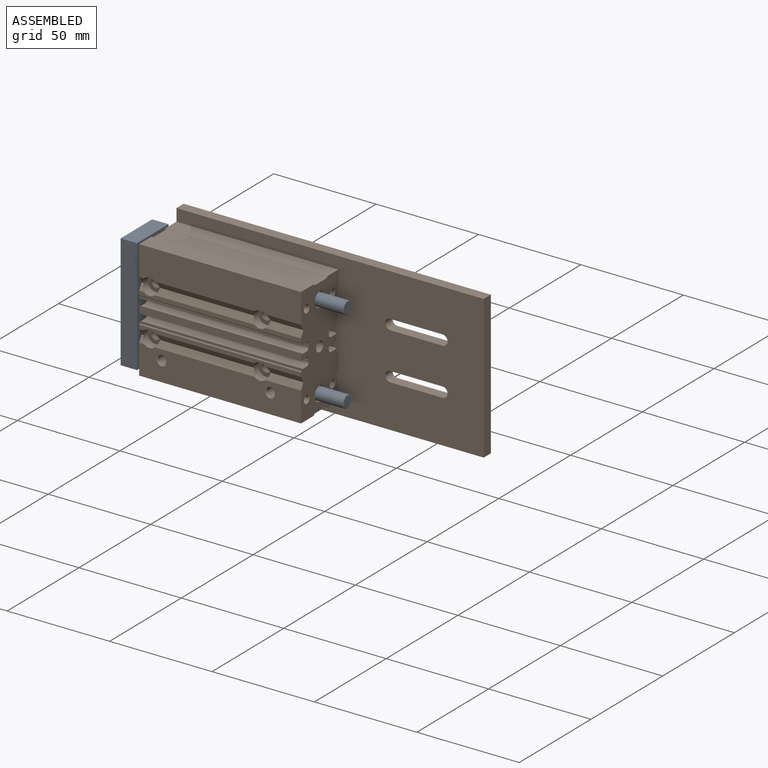
[diagram: assembled view]
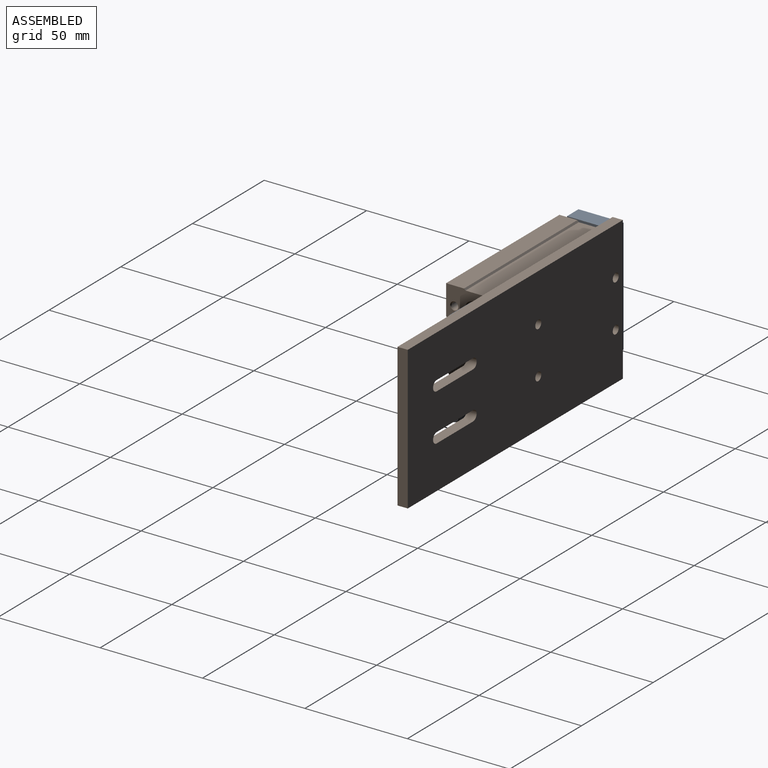
[diagram: assembled view, second angle]
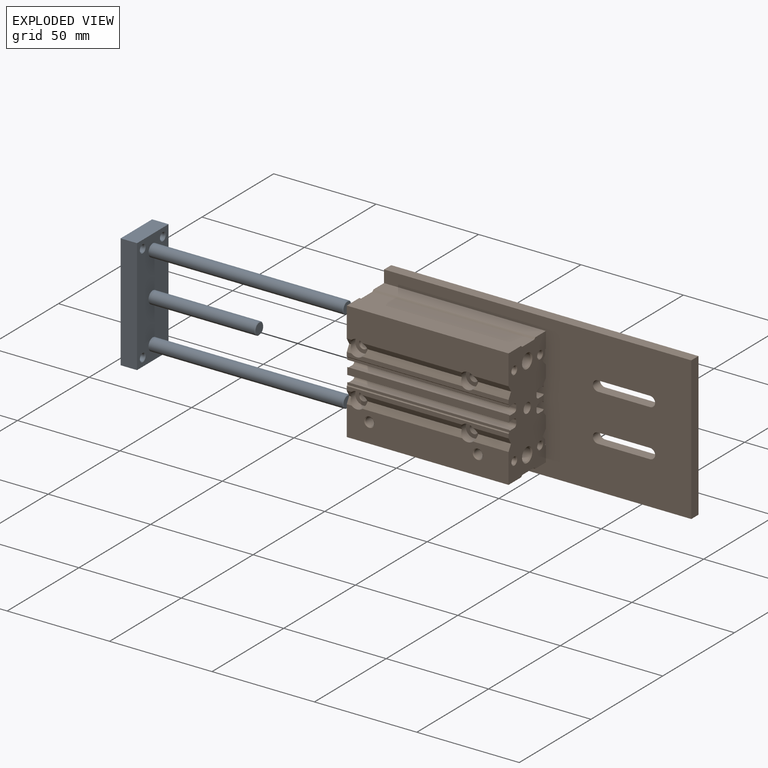
[diagram: exploded view]
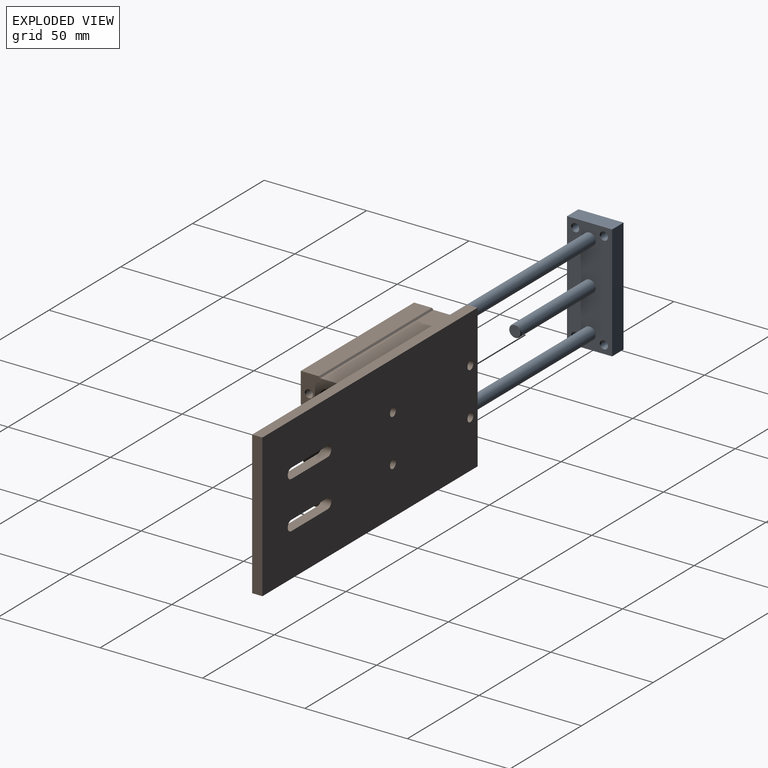
[diagram: exploded view, second angle]
ASSEMBLY  parts=2 mates=2
PART A: 48 faces, bbox 103x22x56 mm
  f0: cone r=1.5mm half-angle=60deg, axis (-1,0,0), area 8.2mm2, adj f3
  f1: cone r=1.25mm half-angle=60deg, axis (-1,0,0), area 5.7mm2, adj f4
  f2: cone r=1.5mm half-angle=60deg, axis (-1,0,0), area 8.2mm2, adj f5
  f3: cylinder r=1.5mm len=3mm, axis (1,0,0), area 24.5mm2, adj f0,f6
  f4: cylinder r=1.25mm len=2.5mm, axis (1,0,0), area 12.6mm2, adj f1,f7
  f5: cylinder r=1.5mm len=3mm, axis (1,0,0), area 24.5mm2, adj f2,f8
  f6: plane 6x6mm, normal (-1,0,0), area 21.2mm2, adj f3,f9
  f7: plane 4.5x4.5mm, normal (-1,0,0), area 11mm2, adj f4,f10
  f8: plane 6x6mm, normal (-1,0,0), area 21.2mm2, adj f5,f11
  f9: cone r=3.25mm half-angle=45deg, axis (1,0,0), area 14.4mm2, adj f6,f12
  f10: cone r=2.5mm half-angle=45deg, axis (1,0,0), area 11.1mm2, adj f7,f13
  f11: cone r=3.25mm half-angle=45deg, axis (1,0,0), area 14.4mm2, adj f8,f14
  f12: cylinder r=3.5mm len=7mm, axis (1,0,0), area 77mm2, adj f9,f15
  f13: cylinder r=2.75mm len=5.5mm, axis (1,0,0), area 43.2mm2, adj f10,f16
  f14: cylinder r=3.5mm len=7mm, axis (1,0,0), area 77mm2, adj f11,f17
  f15: plane 7.6x7.6mm, normal (-1,0,0), area 6.9mm2, adj f12,f20
  f16: plane 6.1x6.1mm, normal (-1,0,0), area 5.5mm2, adj f13,f21
  f17: plane 7.6x7.6mm, normal (-1,0,0), area 6.9mm2, adj f14,f22
  f18: plane 5.4x5.4mm, normal (1,0,0), area 22.9mm2, adj f27
  f19: plane 5.4x5.4mm, normal (1,0,0), area 22.9mm2, adj f28
  f20: cylinder r=3.8mm len=7.6mm, axis (1,0,0), area 127.3mm2, adj f15,f33
  f21: cylinder r=3.05mm len=6.1mm, axis (1,0,0), area 102.2mm2, adj f16,f33
  f22: cylinder r=3.8mm len=7.6mm, axis (1,0,0), area 127.3mm2, adj f17,f33
  f23: cone r=1.81mm half-angle=45deg, axis (-1,0,0), area 6.1mm2, adj f29,f33
  f24: cone r=1.81mm half-angle=45deg, axis (-1,0,0), area 6.1mm2, adj f30,f33
  f25: cone r=1.81mm half-angle=45deg, axis (-1,0,0), area 6.1mm2, adj f31,f33
  f26: cone r=1.81mm half-angle=45deg, axis (-1,0,0), area 6.1mm2, adj f32,f33
  f27: cone r=2.85mm half-angle=45deg, axis (-1,0,0), area 7.6mm2, adj f18,f34
  f28: cone r=2.85mm half-angle=45deg, axis (-1,0,0), area 7.6mm2, adj f19,f35
  f29: cylinder r=1.62mm len=7.24mm, axis (1,0,0), area 73.8mm2, adj f23,f36
  f30: cylinder r=1.62mm len=7.24mm, axis (1,0,0), area 73.8mm2, adj f24,f37
  f31: cylinder r=1.62mm len=7.24mm, axis (1,0,0), area 73.8mm2, adj f25,f38
  f32: cylinder r=1.62mm len=7.24mm, axis (1,0,0), area 73.8mm2, adj f26,f39
  f33: plane 56x22mm, normal (-1,0,0), area 1061.8mm2, adj f20,f21,f22,f23,f24,f25,f26,f40
  f34: cylinder r=3mm len=94.7mm, axis (1,0,0), area 1785.1mm2, adj f27,f45
  f35: cylinder r=3mm len=51.7mm, axis (1,0,0), area 974.5mm2, adj f28,f45
  f36: cone r=1.81mm half-angle=45deg, axis (1,0,0), area 6.1mm2, adj f29,f45
  f37: cone r=1.81mm half-angle=45deg, axis (1,0,0), area 6.1mm2, adj f30,f45
  f38: cone r=1.81mm half-angle=45deg, axis (1,0,0), area 6.1mm2, adj f31,f45
  f39: cone r=1.81mm half-angle=45deg, axis (1,0,0), area 6.1mm2, adj f32,f45
  f40: plane 56x8mm, normal (0,-1,0), area 448mm2, adj f33,f41,f43,f45
  f41: plane 22x8mm, normal (0,0,-1), area 176mm2, adj f33,f40,f42,f45
  f42: plane 56x8mm, normal (0,1,0), area 448mm2, adj f33,f41,f43,f45
  f43: plane 22x8mm, normal (0,0,1), area 176mm2, adj f33,f40,f42,f45
  f44: plane 5.4x5.4mm, normal (1,0,0), area 22.9mm2, adj f46
  f45: plane 56x22mm, normal (1,0,0), area 1096.9mm2, adj f34,f35,f36,f37,f38,f39,f40,f41
  f46: cone r=2.85mm half-angle=45deg, axis (-1,0,0), area 7.6mm2, adj f44,f47
  f47: cylinder r=3mm len=94.7mm, axis (1,0,0), area 1785.1mm2, adj f45,f46
PART B: 169 faces, bbox 150.2x31.2x70.2 mm
  f0: plane 4.13x4.13mm, normal (0,-1,0), area 13.4mm2, adj f12
  f1: plane 4.13x4.13mm, normal (0,-1,0), area 13.4mm2, adj f13
  f2: plane 4.13x4.13mm, normal (0,0,-1), area 13.4mm2, adj f14
  f3: plane 4.13x4.13mm, normal (0,0,-1), area 13.4mm2, adj f15
  f4: plane 4.3x4.3mm, normal (0,-1,0), area 1.1mm2, adj f6,f16
  f5: plane 4.3x4.3mm, normal (0,-1,0), area 1.1mm2, adj f7,f17
  f6: cylinder r=2.15mm len=10.89mm, axis (0,1,0), area 147.2mm2, adj f4,f19
  f7: cylinder r=2.15mm len=10.89mm, axis (0,1,0), area 147.2mm2, adj f5,f20
  f8: cone r=0.81mm half-angle=60deg, axis (1,0,0), area 9.5mm2, adj f22
  f9: cone r=0.81mm half-angle=60deg, axis (1,0,0), area 9.5mm2, adj f23
  f10: cone r=0.81mm half-angle=60deg, axis (1,0,0), area 9.5mm2, adj f24
  f11: cone r=0.81mm half-angle=60deg, axis (1,0,0), area 9.5mm2, adj f25
  f12: cylinder r=2.07mm len=5.32mm, axis (0,1,0), area 69.1mm2, adj f0,f30
  f13: cylinder r=2.07mm len=5.32mm, axis (0,1,0), area 69.1mm2, adj f1,f31
  f14: cylinder r=2.07mm len=5.57mm, axis (0,0,1), area 72.3mm2, adj f2,f33
  f15: cylinder r=2.07mm len=5.57mm, axis (0,0,1), area 72.3mm2, adj f3,f34
  f16: cylinder r=2.07mm len=10.17mm, axis (0,1,0), area 132.1mm2, adj f4,f35
  f17: cylinder r=2.07mm len=10.17mm, axis (0,1,0), area 132.1mm2, adj f5,f36
  f18: cylinder r=2.07mm len=10.17mm, axis (0,1,0), area 132.1mm2, adj f21,f38
  f19: plane 8x8mm, normal (0,-1,0), area 35.7mm2, adj f6,f39
  f20: plane 8x8mm, normal (0,-1,0), area 35.7mm2, adj f7,f40
  f21: plane 4.3x4.3mm, normal (0,-1,0), area 1.1mm2, adj f18,f42
  f22: cylinder r=1.62mm len=10.42mm, axis (-1,0,0), area 106.1mm2, adj f8,f44
  f23: cylinder r=1.62mm len=10.42mm, axis (-1,0,0), area 106.1mm2, adj f9,f45
  f24: cylinder r=1.62mm len=10.42mm, axis (-1,0,0), area 106.1mm2, adj f10,f46
  f25: cylinder r=1.62mm len=10.42mm, axis (-1,0,0), area 106.1mm2, adj f11,f47
  f26: cone r=1.25mm half-angle=60deg, axis (1,0,0), area 22.7mm2, adj f48
  f27: plane 6.2x6.2mm, normal (-1,0,0), area 30.2mm2, adj f53
  f28: cylinder r=3.1mm len=78mm, axis (1,0,0), area 1519.3mm2, adj f49,f54
  f29: cylinder r=3.1mm len=78mm, axis (1,0,0), area 1519.3mm2, adj f50,f55
  f30: cone r=2.28mm half-angle=45deg, axis (0,-1,0), area 8.8mm2, adj f12,f58
  f31: cone r=2.28mm half-angle=45deg, axis (0,-1,0), area 8.8mm2, adj f13,f58
  f32: plane 48.89x3.18mm, normal (0,-0.87,0.5), area 162.2mm2, adj f39,f40,f41,f58
  f33: cone r=2.28mm half-angle=45deg, axis (0,0,-1), area 8.8mm2, adj f14,f59
  f34: cone r=2.28mm half-angle=45deg, axis (0,0,-1), area 8.8mm2, adj f15,f59
  f35: cone r=2.28mm half-angle=45deg, axis (0,1,0), area 8.8mm2, adj f16,f152
  f36: cone r=2.28mm half-angle=45deg, axis (0,1,0), area 8.8mm2, adj f17,f151
  f37: cone r=2.28mm half-angle=45deg, axis (0,1,0), area 8.8mm2, adj f43,f150
  f38: cone r=2.28mm half-angle=45deg, axis (0,1,0), area 8.8mm2, adj f18,f149
  f39: cylinder r=4mm len=8mm, axis (0,1,0), area 101.3mm2, adj f19,f32,f41,f51,f52,f58,f113
  f40: cylinder r=4mm len=8mm, axis (0,1,0), area 101.3mm2, adj f20,f32,f41,f56,f57,f58,f113
  f41: plane 48.89x3.18mm, normal (0,-0.87,-0.5), area 162.2mm2, adj f32,f39,f40,f113
  f42: cylinder r=2.15mm len=10.89mm, axis (0,1,0), area 147.2mm2, adj f21,f114
  f43: cylinder r=2.07mm len=10.17mm, axis (0,1,0), area 132.1mm2, adj f37,f115
  f44: cone r=1.81mm half-angle=45deg, axis (1,0,0), area 6.1mm2, adj f22,f118
  f45: cone r=1.81mm half-angle=45deg, axis (1,0,0), area 6.1mm2, adj f23,f118
  f46: cone r=1.81mm half-angle=45deg, axis (1,0,0), area 6.1mm2, adj f24,f118
  f47: cone r=1.81mm half-angle=45deg, axis (1,0,0), area 6.1mm2, adj f25,f118
  f48: cylinder r=2.5mm len=8mm, axis (-1,0,0), area 125.7mm2, adj f26,f118
  f49: cone r=3.35mm half-angle=45deg, axis (1,0,0), area 14.9mm2, adj f28,f118
  f50: cone r=3.35mm half-angle=45deg, axis (1,0,0), area 14.9mm2, adj f29,f118
  f51: plane 17.53x3.18mm, normal (0,-0.87,-0.5), area 56.9mm2, adj f39,f52,f113,f118
  f52: plane 17.53x3.18mm, normal (0,-0.87,0.5), area 56.9mm2, adj f39,f51,f58,f118
  f53: cylinder r=3.1mm len=50mm, axis (1,0,0), area 973.9mm2, adj f27,f120
  f54: cone r=3.35mm half-angle=45deg, axis (-1,0,0), area 14.9mm2, adj f28,f120
  f55: cone r=3.35mm half-angle=45deg, axis (-1,0,0), area 14.9mm2, adj f29,f120
  f56: plane 3.18x2.53mm, normal (0,-0.87,-0.5), area 4.9mm2, adj f40,f57,f113,f120
  f57: plane 3.18x2.53mm, normal (0,-0.87,0.5), area 4.9mm2, adj f40,f56,f58,f120
  f58: plane 79x14.5mm, normal (0,-1,0), area 1099mm2, adj f30,f31,f32,f39,f40,f52,f57,f59
  f59: plane 79x8.75mm, normal (0,0,-1), area 652mm2, adj f33,f34,f58,f60,f118,f120
  f60: plane 79x0.73mm, normal (0,0.71,-0.71), area 81mm2, adj f59,f61,f118,f120
  f61: plane 79x8.47mm, normal (0,0,-1), area 668.9mm2, adj f60,f62,f118,f120
  f62: plane 79x0.73mm, normal (0,-0.71,-0.71), area 81mm2, adj f61,f63,f118,f120
  f63: plane 79x7.33mm, normal (0,0,-1), area 579.3mm2, adj f62,f118,f120,f148
  f64: plane 79x0.5mm, normal (0,0,1), area 39.5mm2, adj f65,f118,f120,f148
  f65: plane 79x2.57mm, normal (0,1,0), area 203.3mm2, adj f64,f66,f118,f120
  f66: plane 79x1.93mm, normal (0,0.74,0.67), area 205.1mm2, adj f65,f67,f118,f120
  f67: plane 79x2.49mm, normal (0,0.74,-0.67), area 264.3mm2, adj f66,f118,f120,f148
  f68: plane 79x1.82mm, normal (0,0.77,0.64), area 188mm2, adj f69,f118,f120,f148
  f69: plane 79x1.47mm, normal (0,1,0), area 115.9mm2, adj f68,f70,f118,f120
  f70: cylinder r=2.57mm len=79mm, axis (1,0,0), area 57.4mm2, adj f69,f71,f118,f120
  f71: plane 79.01x2.98mm, normal (0,0,1), area 234.7mm2, adj f70,f72,f118,f120
  f72: cylinder r=1.5mm len=79mm, axis (1,0,0), area 186.1mm2, adj f71,f73,f118,f120
  f73: plane 79x1.2mm, normal (0,1,0), area 94.8mm2, adj f72,f74,f118,f120
  f74: cylinder r=1.5mm len=79mm, axis (1,0,0), area 186.1mm2, adj f73,f75,f118,f120
  f75: plane 79.01x2.98mm, normal (0,0,-1), area 234.7mm2, adj f74,f76,f118,f120
  f76: cylinder r=2.57mm len=79mm, axis (1,0,0), area 58mm2, adj f75,f77,f118,f120
  f77: plane 79x3.47mm, normal (0,1,0), area 273.9mm2, adj f76,f78,f118,f120
  f78: cylinder r=2.57mm len=79mm, axis (1,0,0), area 57.4mm2, adj f77,f79,f118,f120
  f79: plane 79.01x2.98mm, normal (0,0,1), area 234.7mm2, adj f78,f80,f118,f120
  f80: cylinder r=1.5mm len=79mm, axis (1,0,0), area 186.1mm2, adj f79,f81,f118,f120
  f81: plane 79x1.2mm, normal (0,1,0), area 94.8mm2, adj f80,f82,f118,f120
  f82: cylinder r=1.5mm len=79mm, axis (1,0,0), area 186.1mm2, adj f81,f83,f118,f120
  f83: plane 79.01x2.98mm, normal (0,0,-1), area 234.7mm2, adj f82,f84,f118,f120
  f84: cylinder r=2.57mm len=79mm, axis (1,0,0), area 58mm2, adj f83,f85,f118,f120
  f85: plane 79x1.47mm, normal (0,1,0), area 115.9mm2, adj f84,f86,f118,f120
  f86: plane 79x1.82mm, normal (0,0.77,-0.64), area 188mm2, adj f85,f118,f120,f148
  f87: plane 79x2.49mm, normal (0,0.74,0.67), area 264.3mm2, adj f88,f118,f120,f148
  f88: plane 79x1.93mm, normal (0,0.74,-0.67), area 205.1mm2, adj f87,f89,f118,f120
  f89: plane 79x2.57mm, normal (0,1,0), area 203.3mm2, adj f88,f90,f118,f120
  f90: plane 79x0.5mm, normal (0,0,-1), area 39.5mm2, adj f89,f118,f120,f148
  f91: plane 79x7.33mm, normal (0,0,1), area 579.3mm2, adj f92,f118,f120,f148
  f92: plane 79x0.73mm, normal (0,-0.71,0.71), area 81mm2, adj f91,f93,f118,f120
  f93: plane 79x8.47mm, normal (0,0,1), area 668.9mm2, adj f92,f94,f118,f120
  f94: plane 79x0.73mm, normal (0,0.71,0.71), area 81mm2, adj f93,f118,f119,f120
  f95: plane 79x1.16mm, normal (0,-1,0), area 91.6mm2, adj f96,f117,f118,f120
  f96: cylinder r=2.57mm len=79mm, axis (1,0,0), area 57.7mm2, adj f95,f97,f118,f120
  f97: plane 79x2.97mm, normal (0,0,-1), area 234.7mm2, adj f96,f98,f118,f120
  f98: cylinder r=1.5mm len=79mm, axis (1,0,0), area 186.1mm2, adj f97,f99,f118,f120
  f99: plane 79x1.2mm, normal (0,-1,0), area 94.8mm2, adj f98,f100,f118,f120
  f100: cylinder r=1.5mm len=79mm, axis (1,0,0), area 186.1mm2, adj f99,f101,f118,f120
  f101: plane 79x2.97mm, normal (0,0,1), area 234.7mm2, adj f100,f102,f118,f120
  f102: cylinder r=2.57mm len=79mm, axis (1,0,0), area 57.7mm2, adj f101,f103,f118,f120
  f103: plane 79x3.47mm, normal (0,-1,0), area 273.9mm2, adj f102,f104,f118,f120
  f104: cylinder r=2.57mm len=79mm, axis (1,0,0), area 57.7mm2, adj f103,f105,f118,f120
  f105: plane 79x2.97mm, normal (0,0,-1), area 234.7mm2, adj f104,f106,f118,f120
  f106: cylinder r=1.5mm len=79mm, axis (1,0,0), area 186.1mm2, adj f105,f107,f118,f120
  f107: plane 79x1.2mm, normal (0,-1,0), area 94.8mm2, adj f106,f108,f118,f120
  f108: cylinder r=1.5mm len=79mm, axis (1,0,0), area 186.1mm2, adj f107,f109,f118,f120
  f109: plane 79x2.97mm, normal (0,0,1), area 234.7mm2, adj f108,f110,f118,f120
  f110: cylinder r=2.57mm len=79mm, axis (1,0,0), area 57.7mm2, adj f109,f111,f118,f120
  f111: plane 79x1.17mm, normal (0,-1,0), area 92.7mm2, adj f110,f112,f118,f120
  f112: plane 79x0.4mm, normal (0,-0.71,0.71), area 44.7mm2, adj f111,f113,f118,f120
  f113: plane 79x2mm, normal (0,-1,0), area 150.7mm2, adj f39,f40,f41,f51,f56,f112,f118,f120
  f114: plane 8x8mm, normal (0,-1,0), area 35.7mm2, adj f42,f122
  f115: plane 4.3x4.3mm, normal (0,-1,0), area 1.1mm2, adj f43,f123
  f116: plane 3.18x2.53mm, normal (0,-0.87,0.5), area 4.9mm2, adj f120,f121,f122,f126
  f117: plane 79x0.4mm, normal (0,-0.71,-0.71), area 44.7mm2, adj f95,f118,f120,f126
  f118: plane 58.01x26.01mm, normal (1,0,0), area 1212.9mm2, adj f44,f45,f46,f47,f48,f49,f50,f51
  f119: plane 79x8.75mm, normal (0,0,1), area 691.2mm2, adj f94,f118,f120,f129
  f120: plane 70x31mm, normal (-1,0,0), area 1602.7mm2, adj f53,f54,f55,f56,f57,f58,f59,f60
  f121: plane 3.18x2.53mm, normal (0,-0.87,-0.5), area 4.9mm2, adj f116,f120,f122,f129
  f122: cylinder r=4mm len=8mm, axis (0,1,0), area 101.3mm2, adj f114,f116,f121,f126,f127,f128,f129
  f123: cylinder r=2.15mm len=10.89mm, axis (0,1,0), area 147.2mm2, adj f115,f130
  f124: plane 17.53x3.18mm, normal (0,-0.87,-0.5), area 56.9mm2, adj f118,f125,f129,f131
  f125: plane 17.53x3.18mm, normal (0,-0.87,0.5), area 56.9mm2, adj f118,f124,f126,f131
  f126: plane 79x2mm, normal (0,-1,0), area 150.7mm2, adj f116,f117,f118,f120,f122,f125,f127,f131
  f127: plane 48.89x3.18mm, normal (0,-0.87,0.5), area 162.2mm2, adj f122,f126,f128,f131
  f128: plane 48.89x3.18mm, normal (0,-0.87,-0.5), area 162.2mm2, adj f122,f127,f129,f131
  f129: plane 79x14.5mm, normal (0,-1,0), area 1138.2mm2, adj f118,f119,f120,f121,f122,f124,f128,f131
  f130: plane 8x8mm, normal (0,-1,0), area 35.7mm2, adj f123,f131
  f131: cylinder r=4mm len=8mm, axis (0,1,0), area 101.3mm2, adj f124,f125,f126,f127,f128,f129,f130
  f132: plane 150x70mm, normal (0,1,0), area 10153.3mm2, adj f120,f133,f134,f135,f136,f137,f138,f139
  f133: plane 25.37x5mm, normal (0,0,1), area 126.9mm2, adj f132,f145,f147,f148
  f134: cylinder r=2.07mm len=5mm, axis (0,-1,0), area 64.9mm2, adj f132,f151
  f135: cylinder r=2.07mm len=5mm, axis (0,-1,0), area 64.9mm2, adj f132,f152
  f136: plane 70x5mm, normal (1,0,0), area 350mm2, adj f132,f140,f141,f148
  f137: cylinder r=2.07mm len=5mm, axis (0,-1,0), area 64.9mm2, adj f132,f150
  f138: cylinder r=2.07mm len=5mm, axis (0,-1,0), area 64.9mm2, adj f132,f149
  f139: plane 25.37x5mm, normal (0,0,1), area 126.9mm2, adj f132,f142,f144,f148
  f140: plane 150x5mm, normal (0,0,1), area 750mm2, adj f120,f132,f136,f148
  f141: plane 150x5mm, normal (0,0,-1), area 750mm2, adj f120,f132,f136,f148
  f142: cylinder r=2.5mm len=5mm, axis (0,-1,0), area 39.3mm2, adj f132,f139,f143,f148
  f143: plane 25.37x5mm, normal (0,0,-1), area 126.9mm2, adj f132,f142,f144,f148
  f144: cylinder r=2.5mm len=5mm, axis (0,-1,0), area 39.3mm2, adj f132,f139,f143,f148
  f145: cylinder r=2.5mm len=5mm, axis (0,-1,0), area 39.3mm2, adj f132,f133,f146,f148
  f146: plane 25.27x5mm, normal (0,0,-1), area 126.3mm2, adj f132,f145,f147,f148
  f147: cylinder r=2.5mm len=5mm, axis (0,-1,0), area 39.8mm2, adj f132,f133,f146,f148
  f148: plane 150x70mm, normal (0,-1,0), area 8029.9mm2, adj f63,f64,f67,f68,f86,f87,f90,f91
  f149: plane 5x5mm, normal (0,-1,0), area 6.2mm2, adj f38,f138
  f150: plane 5x5mm, normal (0,-1,0), area 6.2mm2, adj f37,f137
  f151: plane 5x5mm, normal (0,-1,0), area 6.2mm2, adj f36,f134
  f152: plane 5x5mm, normal (0,-1,0), area 6.2mm2, adj f35,f135
  f153: plane 4x4mm, normal (0,-1,0), area 12.6mm2, adj f156
  f154: cone r=0.81mm half-angle=60deg, axis (0,1,0), area 9.5mm2, adj f155
  f155: cylinder r=1.62mm len=7.79mm, axis (0,-1,0), area 79.3mm2, adj f154,f156
  f156: cone r=1.81mm half-angle=45deg, axis (0,1,0), area 6.1mm2, adj f153,f155
  f157: plane 4x4mm, normal (0,-1,0), area 12.6mm2, adj f160
  f158: cone r=0.81mm half-angle=60deg, axis (0,1,0), area 9.5mm2, adj f159
  f159: cylinder r=1.62mm len=7.79mm, axis (0,-1,0), area 79.3mm2, adj f158,f160
  f160: cone r=1.81mm half-angle=45deg, axis (0,1,0), area 6.1mm2, adj f157,f159
  f161: plane 4x4mm, normal (0,-1,0), area 12.6mm2, adj f164
  f162: cone r=0.81mm half-angle=60deg, axis (0,1,0), area 9.5mm2, adj f163
  f163: cylinder r=1.62mm len=7.79mm, axis (0,-1,0), area 79.3mm2, adj f162,f164
  f164: cone r=1.81mm half-angle=45deg, axis (0,1,0), area 6.1mm2, adj f161,f163
  f165: plane 4x4mm, normal (0,-1,0), area 12.6mm2, adj f168
  f166: cone r=0.81mm half-angle=60deg, axis (0,1,0), area 9.5mm2, adj f167
  f167: cylinder r=1.62mm len=7.79mm, axis (0,-1,0), area 79.3mm2, adj f166,f168
  f168: cone r=1.81mm half-angle=45deg, axis (0,1,0), area 6.1mm2, adj f165,f167
PLACE A t=(-34.3,10.49,-8.21)mm
PLACE B t=(-23.85,10.49,-8.21)mm fixed
MATE cylindrical B.f28 <-> A.f0  axis (1,0,0) through (-23.35,10.49,-28.96)mm
MATE cylindrical A.f2 <-> B.f29  axis (1,0,0) through (21.05,10.49,12.54)mm
